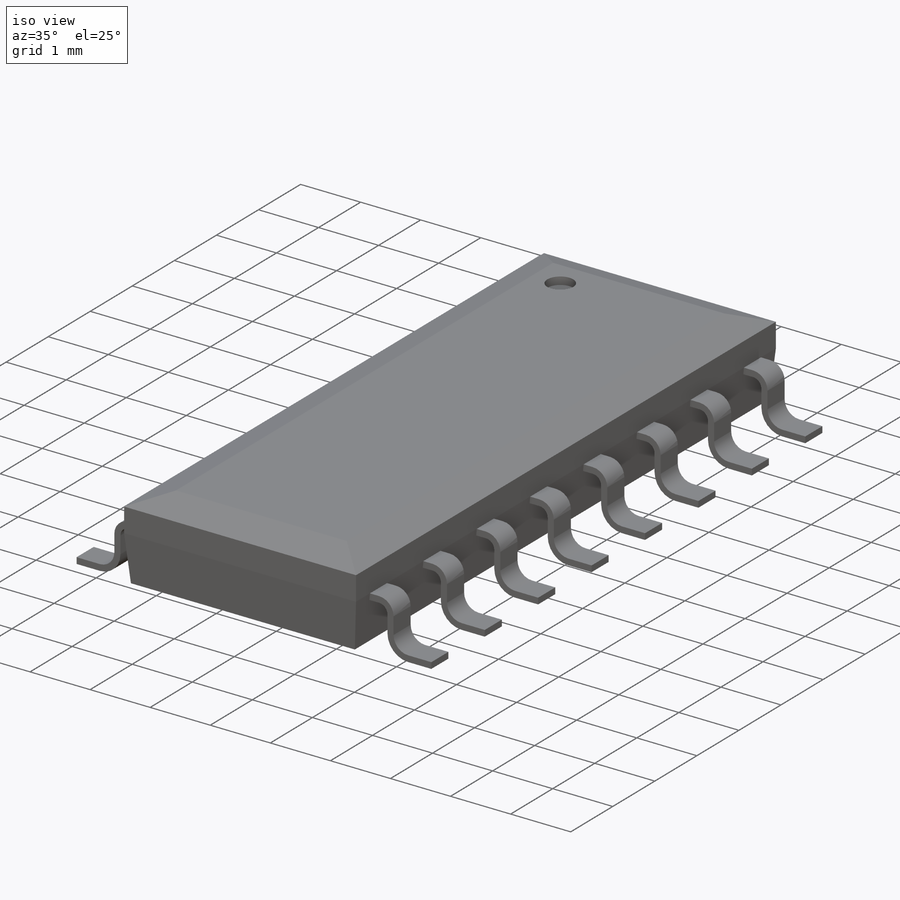
[diagram: iso view]
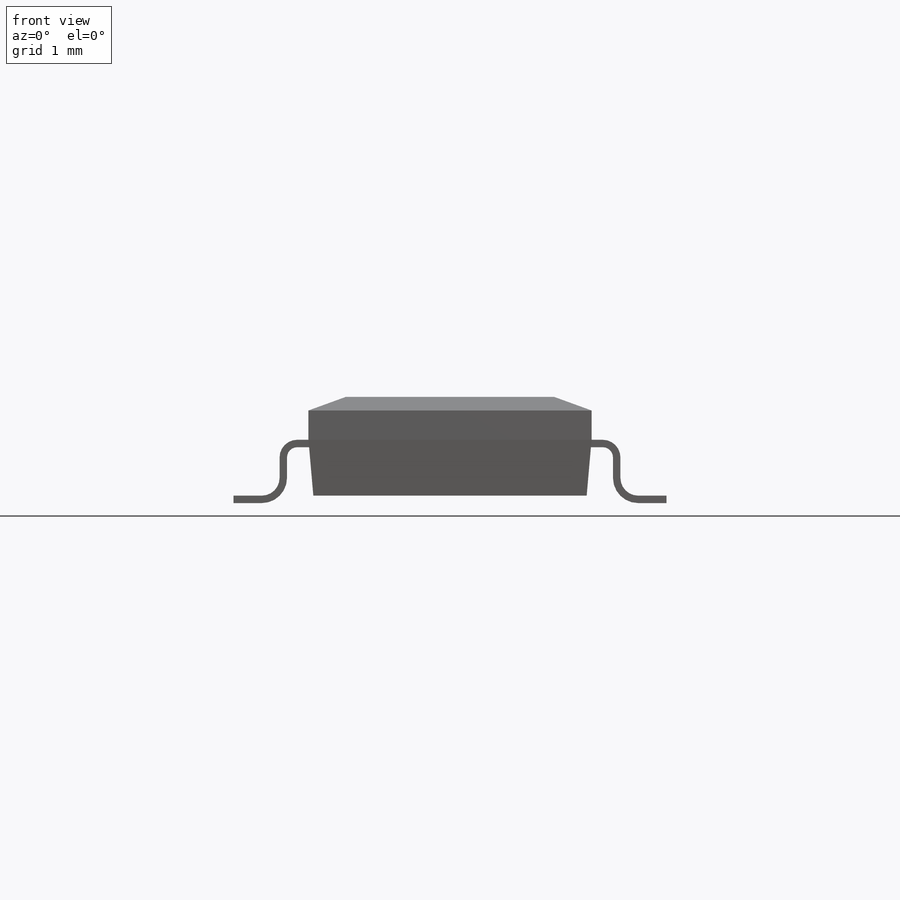
[diagram: front view]
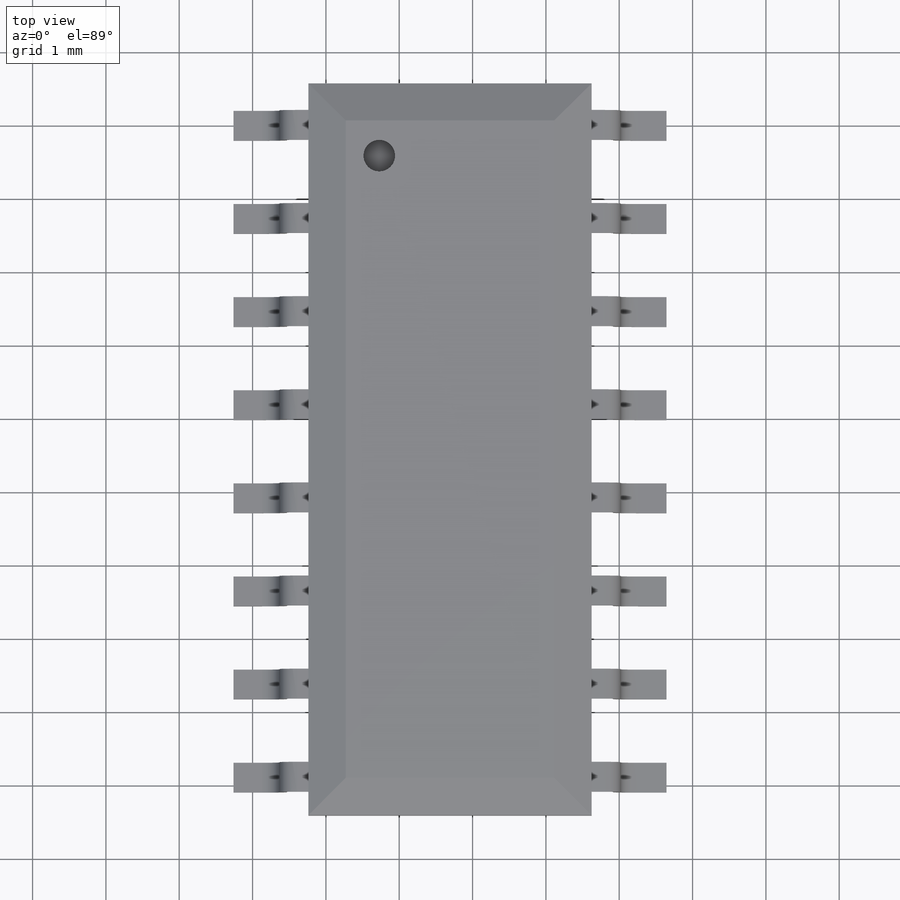
[diagram: top view]
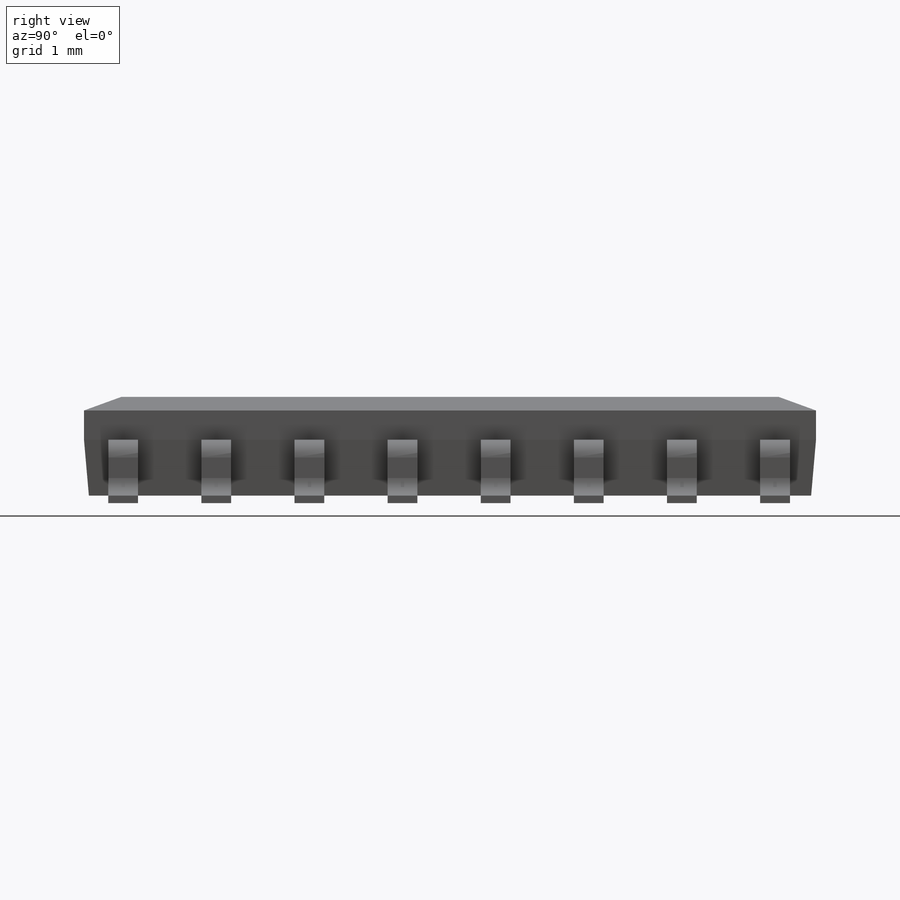
[diagram: right view]
SOLIDWORKS PART (.sldprt)
format: sldprt  version: not decoded by parser v0  size: 416,768 bytes
history: native  units: mm
features: sketch x4, plane x2, chamfer x2, material x1, extrude x1, cut_extrude x1, pattern_linear x1, mirror x1 (+12 scaffold rows collapsed)
feature tree (25):
  scaffold x12  (default folders/planes/origin — collapsed)
  material  "Material <not specified>"
  plane  "Plane 1"  Offset=0.762mm
  sketch  "Sketch1"  dims[D1=9.9822mm D2=1.3462mm D3=0.1016mm D4=0.5588mm]
  extrude  "Base-Extrude"  Depth=3.8608mm
  chamfer  "Chamfer1"  Distance=0.508mm Angle=20deg
  chamfer  "Chamfer2"  Distance=0.762mm Angle=5deg
  sketch  "Sketch2"  dims[c1.D1=0.4318mm c1.D3=0.4318mm c1.D2=0.4826mm c2.D3=0.4572mm]
  cut_extrude  "Cut-Extrude1"  Depth=0.127mm
  plane  "Plane 2"  Offset=1.9304mm
  sketch  "Sketch3"  dims[c1.D2=0.2413mm c1.D1=0.1016mm c2.D2=~2.168096mm c2.D3=0.127mm c2.D4=0.2794mm c2.D1=0.4064mm c2.D5=0.1016mm c2.D6=1.0mm c2.D7=5.0mm]
  pattern_linear  "LPattern1"  Count1=8 Count2=1 Spacing1=1.27mm Spacing2=50mm
  mirror  "Mirror1"
  sketch  "Component_Outline"
decode coverage: 8 of 10 modeling features carry decoded parameters
note: ~ marks probable driven/reference dimensions
note: suppression state not decoded; provenance and decode notes live in map.json
